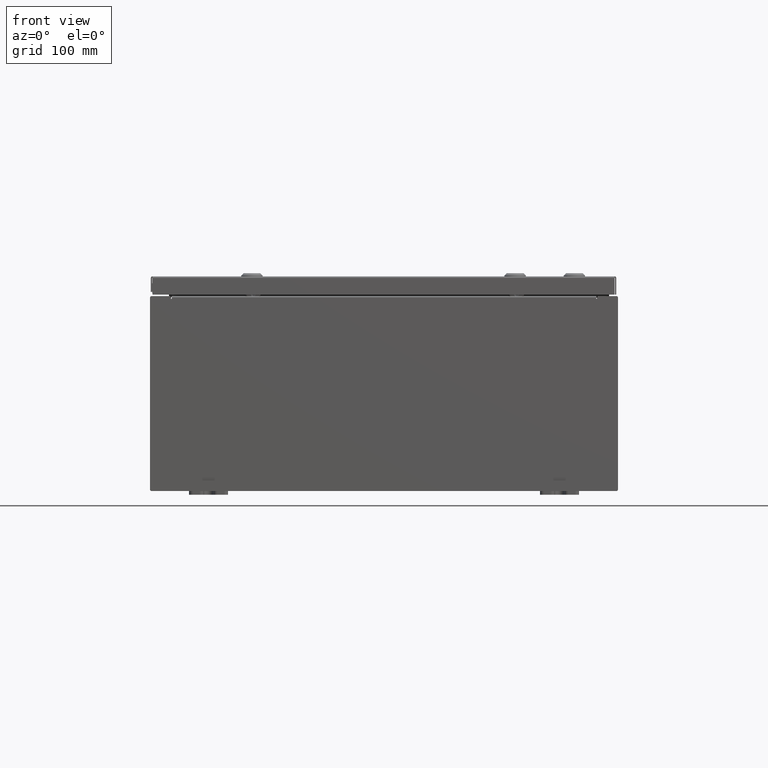
[diagram: clean part render]
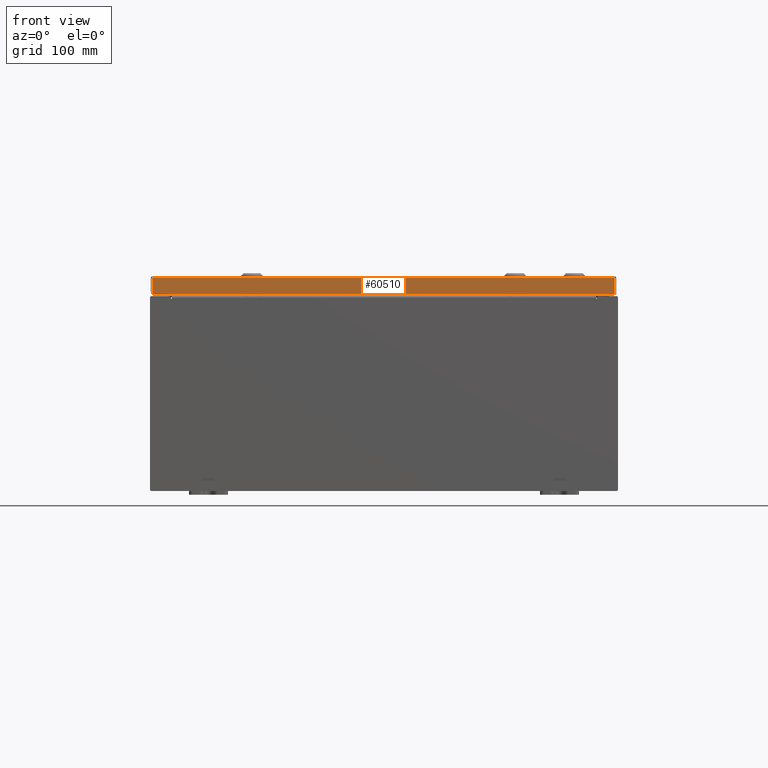
[diagram: same view with one face highlighted and labeled with its STEP entity id]
A machine part, front view. The second image highlights one B-rep face of the part: STEP entity #60510.
In plain terms, the highlighted planar face has unit normal (-0, 1, -0).
Its self-contained STEP definition (entity closure, byte-faithful):
#1383 = VECTOR ( 'NONE', #56832, 39.37007874015748100 ) ;
#2049 = VECTOR ( 'NONE', #48939, 39.37007874015748100 ) ;
#2678 = CARTESIAN_POINT ( 'NONE',  ( 11.84865786437626900, -11.93750000000000200, -0.9376999999999997600 ) ) ;
#4531 = ORIENTED_EDGE ( 'NONE', *, *, #44606, .F. ) ;
#4672 = VERTEX_POINT ( 'NONE', #52812 ) ;
#5869 = PLANE ( 'NONE',  #9849 ) ;
#9849 = AXIS2_PLACEMENT_3D ( 'NONE', #45021, #10781, #45218 ) ;
#10781 = DIRECTION ( 'NONE',  ( -3.187436615352006200E-031, 1.000000000000000000, -2.532419924601866100E-015 ) ) ;
#11000 = VERTEX_POINT ( 'NONE', #2678 ) ;
#12871 = LINE ( 'NONE', #22500, #1383 ) ;
#14245 = VERTEX_POINT ( 'NONE', #20590 ) ;
#15603 = FACE_OUTER_BOUND ( 'NONE', #51271, .T. ) ;
#16441 = EDGE_CURVE ( 'NONE', #14245, #4672, #12871, .T. ) ;
#20590 = CARTESIAN_POINT ( 'NONE',  ( -11.84865786437626800, -11.93750000000000000, -0.08770000000000008300 ) ) ;
#21426 = ORIENTED_EDGE ( 'NONE', *, *, #56032, .F. ) ;
#22500 = CARTESIAN_POINT ( 'NONE',  ( 11.93750000000000000, -11.93750000000000000, -0.08770000000000008300 ) ) ;
#23000 = CARTESIAN_POINT ( 'NONE',  ( 11.84865786437626900, -11.93750000000000000, -0.07469999999999980800 ) ) ;
#26423 = LINE ( 'NONE', #23000, #52527 ) ;
#28144 = CARTESIAN_POINT ( 'NONE',  ( -11.84865786437626600, -11.93750000000000000, 3.049157650594635900E-014 ) ) ;
#30356 = LINE ( 'NONE', #28144, #31897 ) ;
#31897 = VECTOR ( 'NONE', #62347, 39.37007874015748100 ) ;
#32630 = VERTEX_POINT ( 'NONE', #54235 ) ;
#39776 = LINE ( 'NONE', #53829, #2049 ) ;
#39989 = ORIENTED_EDGE ( 'NONE', *, *, #16441, .F. ) ;
#44606 = EDGE_CURVE ( 'NONE', #4672, #11000, #26423, .T. ) ;
#45021 = CARTESIAN_POINT ( 'NONE',  ( 3.805002459576457300E-030, -11.93750000000000000, 3.049157650594635900E-014 ) ) ;
#45218 = DIRECTION ( 'NONE',  ( 0.0000000000000000000, 2.532419924601866100E-015, 1.000000000000000000 ) ) ;
#48939 = DIRECTION ( 'NONE',  ( -1.000000000000000000, 4.379057701015054300E-047, 1.258652478756310100E-016 ) ) ;
#51271 = EDGE_LOOP ( 'NONE', ( #39989, #56059, #21426, #4531 ) ) ;
#52527 = VECTOR ( 'NONE', #57340, 39.37007874015748100 ) ;
#52812 = CARTESIAN_POINT ( 'NONE',  ( 11.84865786437627100, -11.93750000000000000, -0.08770000000000008300 ) ) ;
#53829 = CARTESIAN_POINT ( 'NONE',  ( 11.93750000000000000, -11.93750000000000200, -0.9376999999999997600 ) ) ;
#54235 = CARTESIAN_POINT ( 'NONE',  ( -11.84865786437626800, -11.93750000000000200, -0.9376999999999967600 ) ) ;
#56032 = EDGE_CURVE ( 'NONE', #11000, #32630, #39776, .T. ) ;
#56059 = ORIENTED_EDGE ( 'NONE', *, *, #59294, .T. ) ;
#56832 = DIRECTION ( 'NONE',  ( 1.000000000000000000, 3.187436615352006600E-031, -7.980458346197363700E-046 ) ) ;
#57340 = DIRECTION ( 'NONE',  ( -0.0000000000000000000, -2.532419924601866100E-015, -1.000000000000000000 ) ) ;
#59294 = EDGE_CURVE ( 'NONE', #14245, #32630, #30356, .T. ) ;
#60510 = ADVANCED_FACE ( 'NONE', ( #15603 ), #5869, .F. ) ;
#62347 = DIRECTION ( 'NONE',  ( 0.0000000000000000000, -2.532419924601866100E-015, -1.000000000000000000 ) ) ;